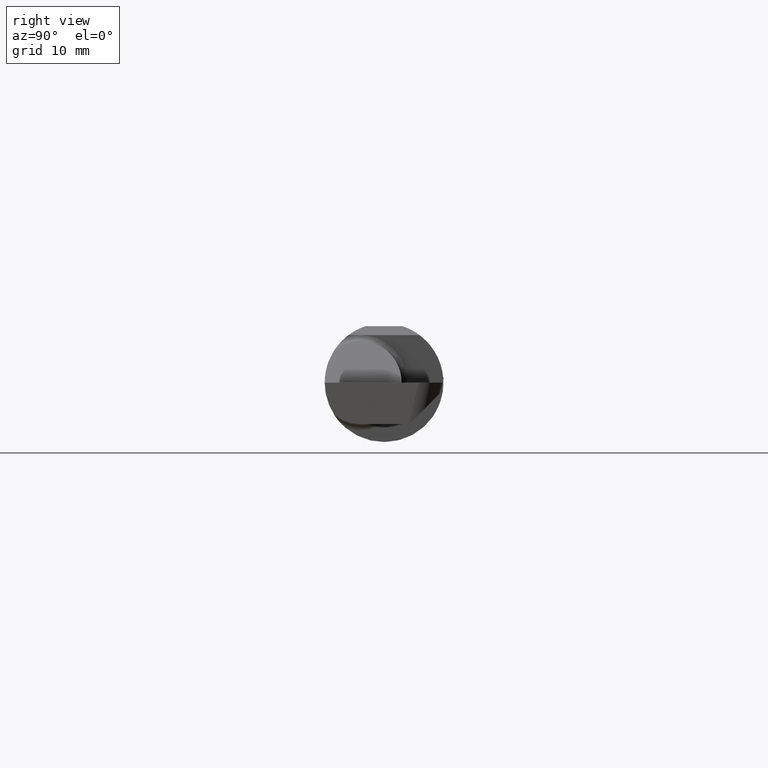
[diagram: clean part render]
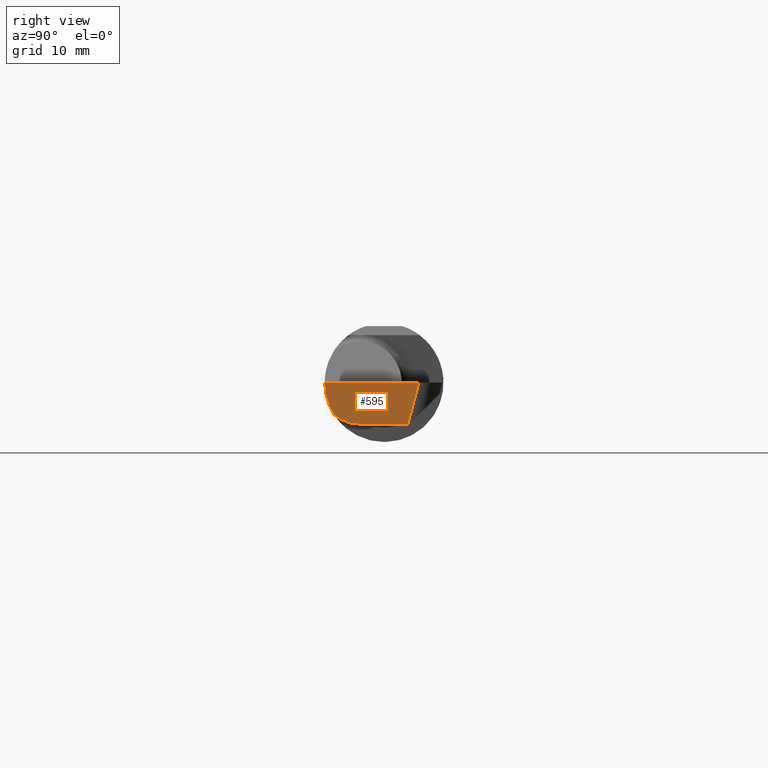
[diagram: same view with one face highlighted and labeled with its STEP entity id]
A machine part, right view. The second image highlights one B-rep face of the part: STEP entity #595.
In plain terms, the highlighted planar face has unit normal (-0.9992, 0.0349, 0.0175).
Its self-contained STEP definition (entity closure, byte-faithful):
#1 = CARTESIAN_POINT ( 'NONE',  ( 2.985694921565461790, -0.1771157075472505060, -0.1623092683844334361 ) ) ;
#34 = ORIENTED_EDGE ( 'NONE', *, *, #495, .T. ) ;
#41 = CARTESIAN_POINT ( 'NONE',  ( 2.995153940549321714, 0.1001024549918554246, -0.1750000000000001277 ) ) ;
#50 = CARTESIAN_POINT ( 'NONE',  ( 2.985124127500504265, -0.2498499999999999610, -0.04956584089959709116 ) ) ;
#69 = EDGE_CURVE ( 'NONE', #705, #556, #596, .T. ) ;
#74 = VECTOR ( 'NONE', #776, 39.37007874015748143 ) ;
#97 = CARTESIAN_POINT ( 'NONE',  ( 2.985032866776429650, -0.2080850024789288044, -0.1382955322609669135 ) ) ;
#113 = DIRECTION ( 'NONE',  ( -0.03489949670249513358, -0.9993908270190959842, 0.000000000000000000 ) ) ;
#114 = EDGE_CURVE ( 'NONE', #705, #748, #681, .T. ) ;
#160 = CARTESIAN_POINT ( 'NONE',  ( 2.988136526189751230, -0.1008499999999992180, -0.1750000000000000722 ) ) ;
#181 = PLANE ( 'NONE',  #402 ) ;
#189 = ORIENTED_EDGE ( 'NONE', *, *, #579, .T. ) ;
#229 = ORIENTED_EDGE ( 'NONE', *, *, #69, .T. ) ;
#238 = CARTESIAN_POINT ( 'NONE',  ( 2.999847912445206877, 0.1469935636673019297, 0.000000000000000000 ) ) ;
#263 = LINE ( 'NONE', #524, #74 ) ;
#272 = ORIENTED_EDGE ( 'NONE', *, *, #114, .F. ) ;
#280 = ORIENTED_EDGE ( 'NONE', *, *, #428, .F. ) ;
#281 = VERTEX_POINT ( 'NONE', #238 ) ;
#298 = CARTESIAN_POINT ( 'NONE',  ( 2.986768025497131607, -0.1400387324517225474, -0.1750000000000002387 ) ) ;
#304 = LINE ( 'NONE', #557, #451 ) ;
#361 = CARTESIAN_POINT ( 'NONE',  ( 2.999942641679308242, 0.1497062540083303195, 0.000000000000000000 ) ) ;
#367 = DIRECTION ( 'NONE',  ( -0.03489949670249512664, -0.9993908270190959842, 0.000000000000000000 ) ) ;
#402 = AXIS2_PLACEMENT_3D ( 'NONE', #434, #745, #367 ) ;
#407 = CARTESIAN_POINT ( 'NONE',  ( 2.988136526189751230, -0.1008499999999992180, -0.1750000000000000722 ) ) ;
#428 = EDGE_CURVE ( 'NONE', #461, #556, #263, .T. ) ;
#434 = CARTESIAN_POINT ( 'NONE',  ( 2.999942641679308242, 0.1497062540083303195, 0.000000000000000000 ) ) ;
#438 = DIRECTION ( 'NONE',  ( 0.02590004391968260197, 0.2587322210431824421, 0.9656017944882975268 ) ) ;
#451 = VECTOR ( 'NONE', #438, 39.37007874015748854 ) ;
#461 = VERTEX_POINT ( 'NONE', #41 ) ;
#478 = CARTESIAN_POINT ( 'NONE',  ( 2.985032866776429650, -0.2080850024789288044, -0.1382955322609669135 ) ) ;
#489 = CARTESIAN_POINT ( 'NONE',  ( 2.984795792828450978, -0.2355204011147991605, -0.09701513151466779894 ) ) ;
#495 = EDGE_CURVE ( 'NONE', #281, #748, #740, .T. ) ;
#524 = CARTESIAN_POINT ( 'NONE',  ( 2.988640834071240260, -0.08640851177310765463, -0.1750000000000000722 ) ) ;
#552 = CARTESIAN_POINT ( 'NONE',  ( 2.985032866776429650, -0.2080850024789288044, -0.1382955322609669135 ) ) ;
#556 = VERTEX_POINT ( 'NONE', #407 ) ;
#557 = CARTESIAN_POINT ( 'NONE',  ( 2.999866154205845792, 0.1471757923639230858, 0.0006800867543872491684 ) ) ;
#579 = EDGE_CURVE ( 'NONE', #461, #281, #304, .T. ) ;
#595 = ADVANCED_FACE ( 'NONE', ( #687 ), #181, .F. ) ;
#596 =( BOUNDED_CURVE ( )  B_SPLINE_CURVE ( 3, ( #552, #1, #298, #160 ),
 .UNSPECIFIED., .F., .T. ) 
 B_SPLINE_CURVE_WITH_KNOTS ( ( 4, 4 ),
 ( 0.4474640105399709245, 1.107026853503878749 ),
 .UNSPECIFIED. ) 
 CURVE ( )  GEOMETRIC_REPRESENTATION_ITEM ( )  RATIONAL_B_SPLINE_CURVE ( ( 1.000000000000000000, 0.9640754331822828371, 0.9640754331822828371, 1.000000000000000000 ) ) 
 REPRESENTATION_ITEM ( '' )  );
#638 = CARTESIAN_POINT ( 'NONE',  ( 2.985989829834099218, -0.2498499999999999888, 0.000000000000000000 ) ) ;
#643 = VECTOR ( 'NONE', #113, 39.37007874015748143 ) ;
#681 =( BOUNDED_CURVE ( )  B_SPLINE_CURVE ( 3, ( #478, #489, #50, #736 ),
 .UNSPECIFIED., .F., .F. ) 
 B_SPLINE_CURVE_WITH_KNOTS ( ( 4, 4 ),
 ( 6.160376845738952944, 6.746954780470612256 ),
 .UNSPECIFIED. ) 
 CURVE ( )  GEOMETRIC_REPRESENTATION_ITEM ( )  RATIONAL_B_SPLINE_CURVE ( ( 1.000000000000000000, 0.9715321379117536349, 0.9715321379117536349, 1.000000000000000000 ) ) 
 REPRESENTATION_ITEM ( '' )  );
#687 = FACE_OUTER_BOUND ( 'NONE', #729, .T. ) ;
#705 = VERTEX_POINT ( 'NONE', #97 ) ;
#729 = EDGE_LOOP ( 'NONE', ( #280, #189, #34, #272, #229 ) ) ;
#736 = CARTESIAN_POINT ( 'NONE',  ( 2.985989829834099218, -0.2498499999999999888, 0.000000000000000000 ) ) ;
#740 = LINE ( 'NONE', #361, #643 ) ;
#745 = DIRECTION ( 'NONE',  ( -0.9992386149554828290, 0.03489418134010782713, 0.01745240643728358798 ) ) ;
#748 = VERTEX_POINT ( 'NONE', #638 ) ;
#776 = DIRECTION ( 'NONE',  ( -0.03489949670249513358, -0.9993908270190959842, 1.223270068893321771E-16 ) ) ;